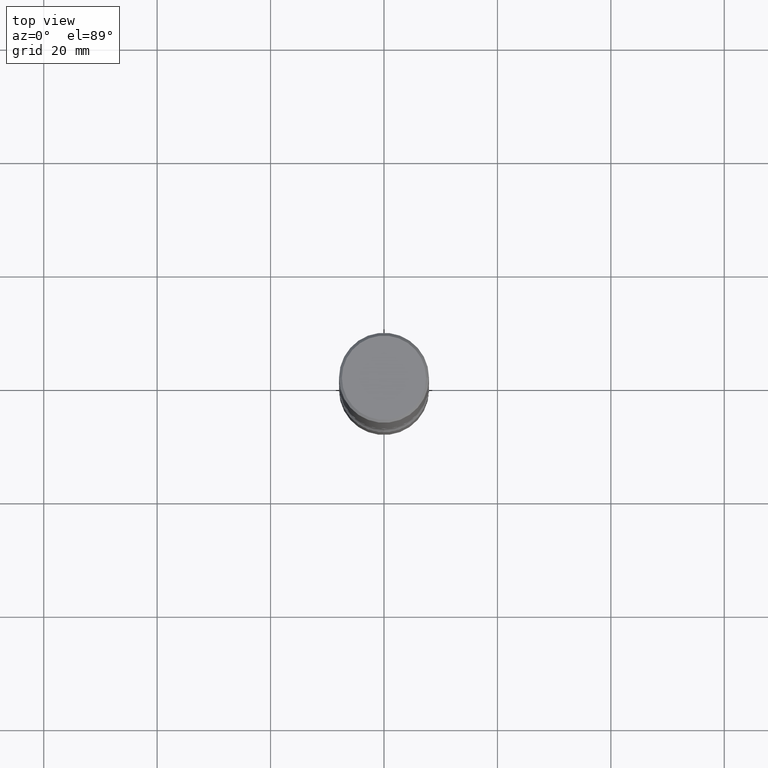
[diagram: clean part render]
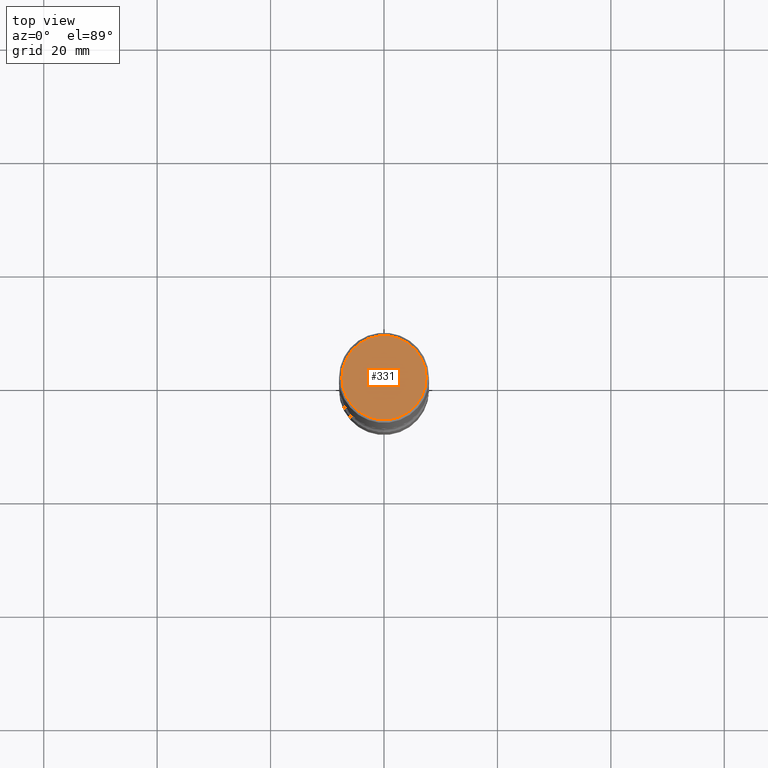
[diagram: same view with one face highlighted and labeled with its STEP entity id]
A machine part, top view. The second image highlights one B-rep face of the part: STEP entity #331.
In plain terms, the highlighted planar face has unit normal (0, -0, -1).
Its self-contained STEP definition (entity closure, byte-faithful):
#1 = DIRECTION ( 'NONE',  ( -1.000000000000000000, 6.982962677686265922E-15, -4.876176775795935793E-29 ) ) ;
#26 = EDGE_CURVE ( 'NONE', #121, #471, #140, .T. ) ;
#42 = AXIS2_PLACEMENT_3D ( 'NONE', #259, #226, #349 ) ;
#121 = VERTEX_POINT ( 'NONE', #553 ) ;
#136 = EDGE_LOOP ( 'NONE', ( #544, #344 ) ) ;
#140 = CIRCLE ( 'NONE', #421, 0.2924999999999998157 ) ;
#147 = DIRECTION ( 'NONE',  ( 1.000000000000000000, -6.982962677686266711E-15, 4.876067333457692840E-29 ) ) ;
#197 = DIRECTION ( 'NONE',  ( -2.445468806185136597E-29, 3.491481338843145583E-15, 1.000000000000000000 ) ) ;
#217 = DIRECTION ( 'NONE',  ( 2.438088387897960049E-29, -3.491481338843145188E-15, -1.000000000000000000 ) ) ;
#226 = DIRECTION ( 'NONE',  ( -2.445468806185136597E-29, 3.491481338843145583E-15, 1.000000000000000000 ) ) ;
#248 = CIRCLE ( 'NONE', #42, 0.2924999999999998157 ) ;
#255 = CARTESIAN_POINT ( 'NONE',  ( 0.2924999999999998157, -2.110215457714318748E-15, 4.268512490114932791E-18 ) ) ;
#256 = AXIS2_PLACEMENT_3D ( 'NONE', #343, #217, #1 ) ;
#259 = CARTESIAN_POINT ( 'NONE',  ( -1.043851414335219820E-46, 1.490343170380447200E-32, 4.268512490100411279E-18 ) ) ;
#290 = EDGE_CURVE ( 'NONE', #471, #121, #248, .T. ) ;
#331 = ADVANCED_FACE ( 'NONE', ( #479 ), #475, .F. ) ;
#343 = CARTESIAN_POINT ( 'NONE',  ( 2.042516583223231356E-15, 0.2924999999999998157, -1.019124035366569212E-15 ) ) ;
#344 = ORIENTED_EDGE ( 'NONE', *, *, #290, .T. ) ;
#349 = DIRECTION ( 'NONE',  ( 1.000000000000000000, -6.982962677686266711E-15, 4.876067333457692840E-29 ) ) ;
#421 = AXIS2_PLACEMENT_3D ( 'NONE', #497, #197, #147 ) ;
#471 = VERTEX_POINT ( 'NONE', #255 ) ;
#475 = PLANE ( 'NONE',  #256 ) ;
#479 = FACE_OUTER_BOUND ( 'NONE', #136, .T. ) ;
#497 = CARTESIAN_POINT ( 'NONE',  ( -1.043851414335219820E-46, 1.490343170380447200E-32, 4.268512490100411279E-18 ) ) ;
#544 = ORIENTED_EDGE ( 'NONE', *, *, #26, .T. ) ;
#553 = CARTESIAN_POINT ( 'NONE',  ( -0.2924999999999998157, 2.077431396611663005E-15, 4.268512490086005323E-18 ) ) ;